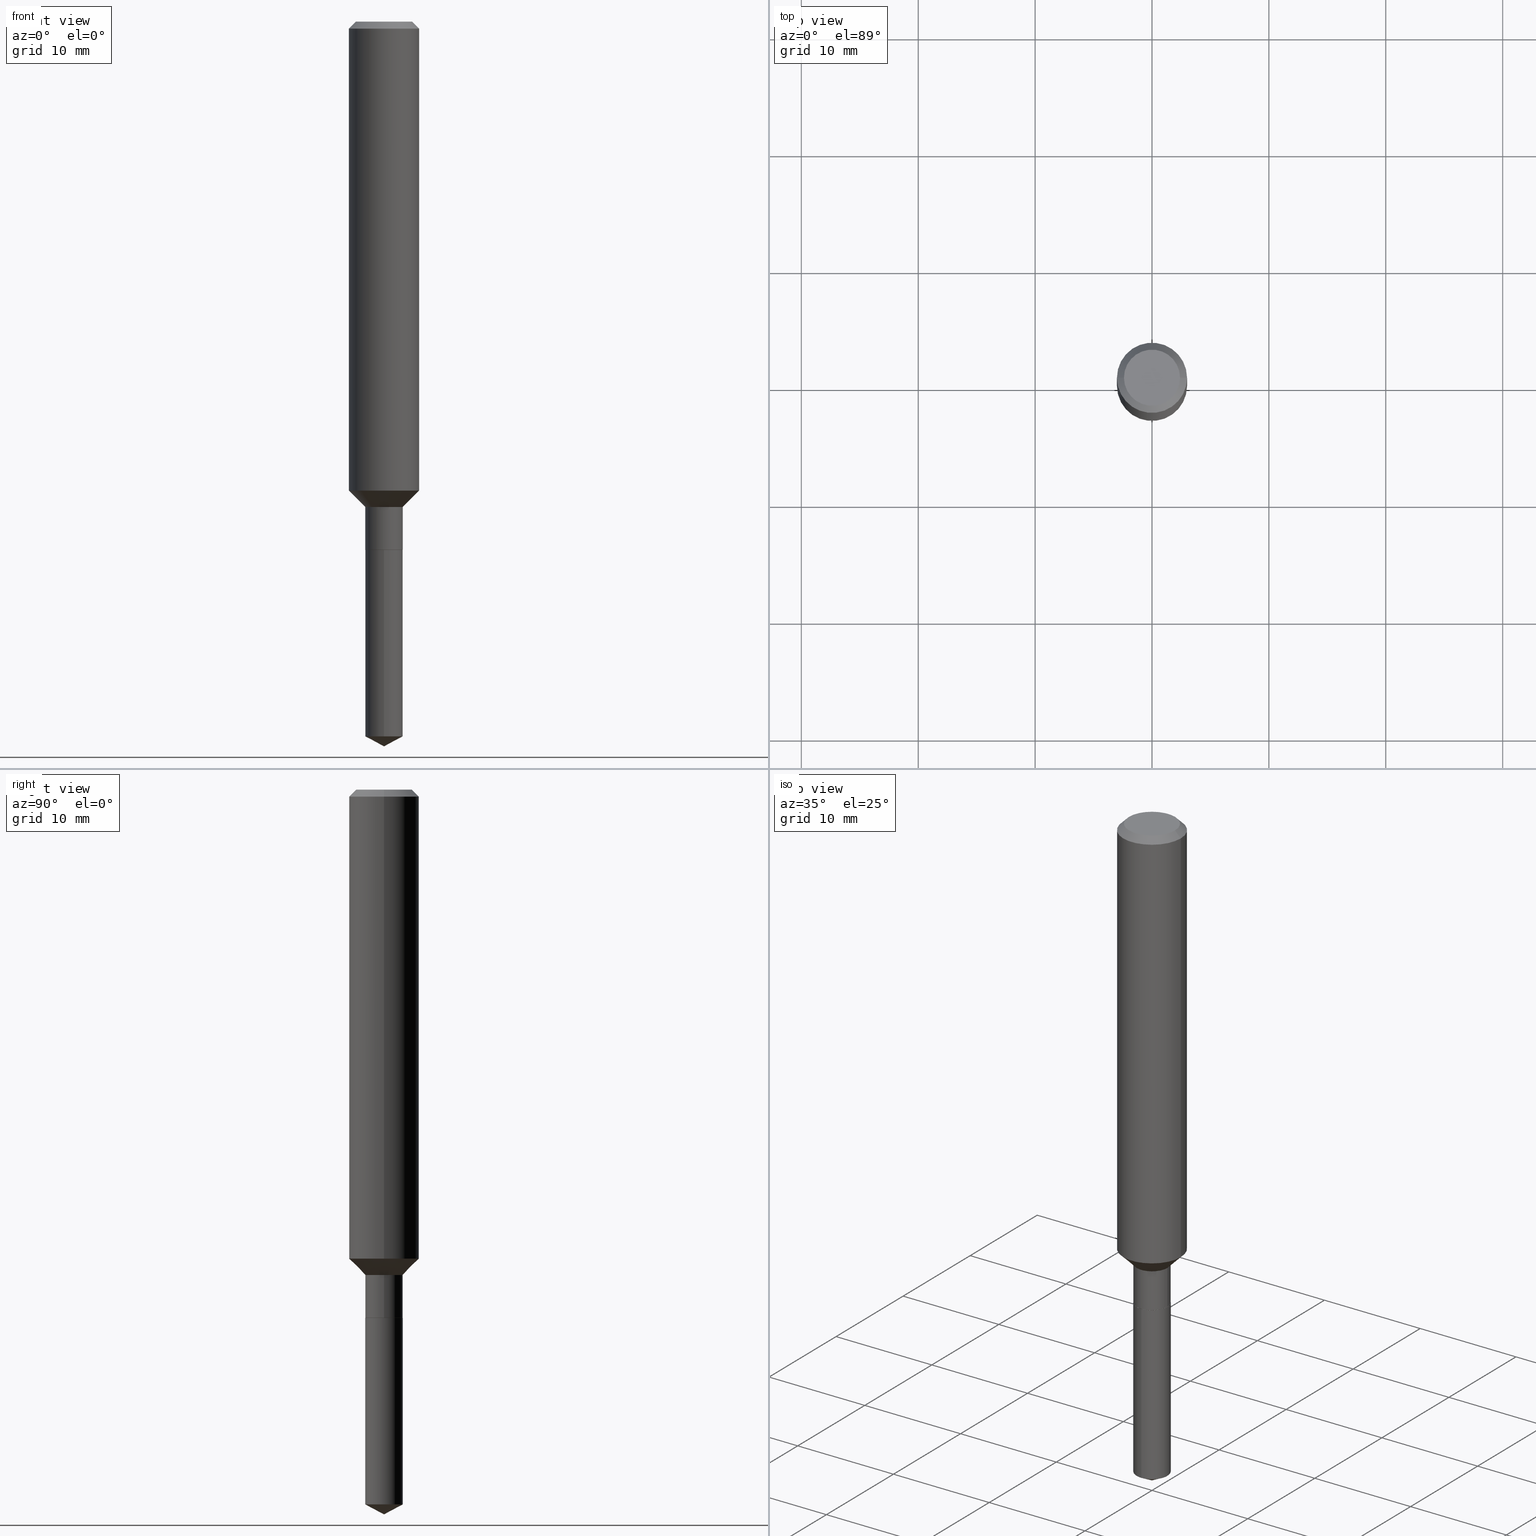
[diagram: canonical four-view strip — front | top / right | iso, engineering-drawing reading convention]
A machine part, canonical four-view strip (front | top / right | iso — engineering-drawing reading convention). The complete STEP part file that produces these views, byte-faithful:
ISO-10303-21;
HEADER;
FILE_DESCRIPTION (( 'STEP AP203' ),
    '1' );
FILE_NAME ('64602.STEP',
    '2024-04-24T18:23:04',
    ( '' ),
    ( '' ),
    'SwSTEP 2.0',
    'SolidWorks 2023',
    '' );
FILE_SCHEMA (( 'CONFIG_CONTROL_DESIGN' ));
ENDSEC;

DATA;
#1 = LINE ( 'NONE', #91, #315 ) ;
#2 = ORIENTED_EDGE ( 'NONE', *, *, #110, .F. ) ;
#3 = EDGE_LOOP ( 'NONE', ( #335, #71, #346, #327 ) ) ;
#4 = DIRECTION ( 'NONE',  ( 1.000000000000000000, -6.982962677686266711E-15, 4.876176775795936353E-29 ) ) ;
#5 = VERTEX_POINT ( 'NONE', #399 ) ;
#6 = CYLINDRICAL_SURFACE ( 'NONE', #25, 0.1181000000000000799 ) ;
#7 = AXIS2_PLACEMENT_3D ( 'NONE', #274, #46, #354 ) ;
#8 = PERSON_AND_ORGANIZATION ( #148, #202 ) ;
#9 = DIRECTION ( 'NONE',  ( -2.445468806185136877E-29, 3.491481338843145188E-15, 1.000000000000000000 ) ) ;
#10 = CARTESIAN_POINT ( 'NONE',  ( 0.09447999999999998066, -7.704367267948738690E-16, -2.700101262759583929E-17 ) ) ;
#11 = EDGE_CURVE ( 'NONE', #268, #54, #172, .T. ) ;
#12 = ORIENTED_EDGE ( 'NONE', *, *, #181, .F. ) ;
#13 = DIRECTION ( 'NONE',  ( 2.438088387897960049E-29, -3.491481338843145188E-15, -1.000000000000000000 ) ) ;
#14 = AXIS2_PLACEMENT_3D ( 'NONE', #341, #267, #427 ) ;
#15 = DIRECTION ( 'NONE',  ( -0.7071067811866199593, 7.493145998870616062E-15, 0.7071067811864750752 ) ) ;
#16 = ORIENTED_EDGE ( 'NONE', *, *, #105, .T. ) ;
#17 = CARTESIAN_POINT ( 'NONE',  ( 5.776197320209327532E-31, -8.246878922347559293E-17, -0.02362000000000014088 ) ) ;
#18 = ORIENTED_EDGE ( 'NONE', *, *, #342, .T. ) ;
#19 = CC_DESIGN_PERSON_AND_ORGANIZATION_ASSIGNMENT ( #254, #160, ( #469 ) ) ;
#20 = CARTESIAN_POINT ( 'NONE',  ( -4.399266486941762515E-16, -0.06300000000000846589, -2.407402305805326215 ) ) ;
#21 = CC_DESIGN_APPROVAL ( #486, ( #469 ) ) ;
#22 = DIRECTION ( 'NONE',  ( -6.982962677686266711E-15, -1.000000000000000000, 4.336266656609940039E-15 ) ) ;
#23 = CIRCLE ( 'NONE', #476, 0.1180999999999999966 ) ;
#24 = DIRECTION ( 'NONE',  ( -2.410210736242674769E-29, 3.541972901765466876E-15, 1.000000000000000000 ) ) ;
#25 = AXIS2_PLACEMENT_3D ( 'NONE', #121, #393, #305 ) ;
#26 = ORIENTED_EDGE ( 'NONE', *, *, #423, .F. ) ;
#27 = PRODUCT ( '64602', '64602', '', ( #416 ) ) ;
#28 = CC_DESIGN_PERSON_AND_ORGANIZATION_ASSIGNMENT ( #127, #459, ( #469 ) ) ;
#29 = CALENDAR_DATE ( 2024, 24, 4 ) ;
#30 = CLOSED_SHELL ( 'NONE', ( #270, #442, #35, #382, #394 ) ) ;
#31 = AXIS2_PLACEMENT_3D ( 'NONE', #62, #359, #317 ) ;
#32 = VERTEX_POINT ( 'NONE', #395 ) ;
#33 = FACE_OUTER_BOUND ( 'NONE', #212, .T. ) ;
#34 = CALENDAR_DATE ( 2024, 24, 4 ) ;
#35 = ADVANCED_FACE ( 'NONE', ( #263 ), #201, .T. ) ;
#36 = COORDINATED_UNIVERSAL_TIME_OFFSET ( 5, 0, .BEHIND. ) ;
#37 = SHAPE_DEFINITION_REPRESENTATION ( #94, #467 ) ;
#38 = DIRECTION ( 'NONE',  ( -0.7071067811865460184, 2.468850131082241283E-15, -0.7071067811865490160 ) ) ;
#39 = VERTEX_POINT ( 'NONE', #153 ) ;
#40 = CONICAL_SURFACE ( 'NONE', #190, 0.06250000000000000000, 0.7853981633975507526 ) ;
#41 = APPROVAL_DATE_TIME ( #196, #208 ) ;
#42 = CARTESIAN_POINT ( 'NONE',  ( -0.1180999999999999966, -1.959480811030432098E-15, -0.02362000000000014088 ) ) ;
#43 = ORIENTED_EDGE ( 'NONE', *, *, #260, .F. ) ;
#44 = SECURITY_CLASSIFICATION_LEVEL ( 'unclassified' ) ;
#45 = CARTESIAN_POINT ( 'NONE',  ( 6.603013411620882309E-46, -9.427353171913646324E-32, -2.700101262760083747E-17 ) ) ;
#46 = DIRECTION ( 'NONE',  ( -2.445468806185136597E-29, 3.491481338843145583E-15, 1.000000000000000000 ) ) ;
#47 = VECTOR ( 'NONE', #169, 39.37007874015748143 ) ;
#48 = VERTEX_POINT ( 'NONE', #264 ) ;
#49 = ADVANCED_FACE ( 'NONE', ( #33 ), #184, .F. ) ;
#50 = CARTESIAN_POINT ( 'NONE',  ( -4.399266486941912892E-16, -0.06300000000000621769, -1.779499999999999416 ) ) ;
#51 = ORIENTED_EDGE ( 'NONE', *, *, #286, .T. ) ;
#52 = DIRECTION ( 'NONE',  ( 1.000000000000000000, -6.982962677686266711E-15, 4.876176775795936353E-29 ) ) ;
#53 = EDGE_CURVE ( 'NONE', #48, #32, #384, .T. ) ;
#54 = VERTEX_POINT ( 'NONE', #122 ) ;
#55 = LINE ( 'NONE', #440, #340 ) ;
#56 = LOCAL_TIME ( 14, 23, 4.000000000000000000, #72 ) ;
#57 = FACE_OUTER_BOUND ( 'NONE', #454, .T. ) ;
#58 = AXIS2_PLACEMENT_3D ( 'NONE', #104, #13, #63 ) ;
#59 = ORIENTED_EDGE ( 'NONE', *, *, #456, .T. ) ;
#60 = LINE ( 'NONE', #102, #302 ) ;
#61 = ORIENTED_EDGE ( 'NONE', *, *, #260, .T. ) ;
#62 = CARTESIAN_POINT ( 'NONE',  ( 4.351711740606449758E-29, -6.213091042471375748E-15, -1.779499999999999638 ) ) ;
#63 = DIRECTION ( 'NONE',  ( -1.000000000000000000, 6.982962677686265922E-15, -4.876176775795935793E-29 ) ) ;
#64 =( GEOMETRIC_REPRESENTATION_CONTEXT ( 3 ) GLOBAL_UNCERTAINTY_ASSIGNED_CONTEXT ( ( #457 ) ) GLOBAL_UNIT_ASSIGNED_CONTEXT ( ( #411, #482, #74 ) ) REPRESENTATION_CONTEXT ( 'NONE', 'WORKASPACE' ) );
#65 = ORIENTED_EDGE ( 'NONE', *, *, #345, .F. ) ;
#66 = AXIS2_PLACEMENT_3D ( 'NONE', #257, #484, #339 ) ;
#67 = DIRECTION ( 'NONE',  ( 0.000000000000000000, 0.000000000000000000, 1.000000000000000000 ) ) ;
#68 = CIRCLE ( 'NONE', #31, 0.06250000000000000000 ) ;
#69 = EDGE_CURVE ( 'NONE', #54, #268, #188, .T. ) ;
#70 = PERSON_AND_ORGANIZATION ( #148, #202 ) ;
#71 = ORIENTED_EDGE ( 'NONE', *, *, #489, .F. ) ;
#72 = COORDINATED_UNIVERSAL_TIME_OFFSET ( 5, 0, .BEHIND. ) ;
#73 = AXIS2_PLACEMENT_3D ( 'NONE', #246, #400, #134 ) ;
#74 =( NAMED_UNIT ( * ) SI_UNIT ( $, .STERADIAN. ) SOLID_ANGLE_UNIT ( ) );
#75 = VECTOR ( 'NONE', #379, 39.37007874015748143 ) ;
#76 = EDGE_LOOP ( 'NONE', ( #81, #409, #209, #361 ) ) ;
#77 = APPROVAL ( #176, 'UNSPECIFIED' ) ;
#78 = APPROVAL_STATUS ( 'not_yet_approved' ) ;
#79 = DIRECTION ( 'NONE',  ( -2.438088387897960049E-29, 3.491481338843145188E-15, 1.000000000000000000 ) ) ;
#80 = CARTESIAN_POINT ( 'NONE',  ( -0.1180999999999999966, 7.422191030112725094E-16, -0.02362000000000014088 ) ) ;
#81 = ORIENTED_EDGE ( 'NONE', *, *, #211, .T. ) ;
#82 = PERSON_AND_ORGANIZATION_ROLE ( 'classification_officer' ) ;
#83 = DIRECTION ( 'NONE',  ( -2.410210736242674769E-29, 3.541972901765466876E-15, 1.000000000000000000 ) ) ;
#84 = AXIS2_PLACEMENT_3D ( 'NONE', #336, #79, #485 ) ;
#85 = DIRECTION ( 'NONE',  ( -2.445468806185136597E-29, 3.491481338843145583E-15, 1.000000000000000000 ) ) ;
#86 = EDGE_CURVE ( 'NONE', #5, #426, #117, .T. ) ;
#87 = DATE_TIME_ROLE ( 'classification_date' ) ;
#88 = FACE_OUTER_BOUND ( 'NONE', #414, .T. ) ;
#89 = EDGE_CURVE ( 'NONE', #206, #426, #109, .T. ) ;
#90 = ORIENTED_EDGE ( 'NONE', *, *, #89, .F. ) ;
#91 = CARTESIAN_POINT ( 'NONE',  ( -0.06299999999999998657, 4.476419235288630216E-16, -3.098929106860590303E-30 ) ) ;
#92 = AXIS2_PLACEMENT_3D ( 'NONE', #203, #83, #355 ) ;
#93 = CARTESIAN_POINT ( 'NONE',  ( 4.350489006203357517E-29, -6.211345301801955822E-15, -1.778999999999999693 ) ) ;
#94 = PRODUCT_DEFINITION_SHAPE ( 'NONE', 'NONE',  #162 ) ;
#95 = FACE_OUTER_BOUND ( 'NONE', #435, .T. ) ;
#96 = DIRECTION ( 'NONE',  ( -2.445468806185136597E-29, 3.491481338843145583E-15, 1.000000000000000000 ) ) ;
#97 = FACE_OUTER_BOUND ( 'NONE', #419, .T. ) ;
#98 = CC_DESIGN_DATE_AND_TIME_ASSIGNMENT ( #453, #332, ( #162 ) ) ;
#99 = APPROVAL_PERSON_ORGANIZATION ( #451, #486, #224 ) ;
#100 = VECTOR ( 'NONE', #15, 39.37007874015748143 ) ;
#101 = CONICAL_SURFACE ( 'NONE', #352, 0.06299999999999998657, 0.7853981633974508325 ) ;
#102 = CARTESIAN_POINT ( 'NONE',  ( 0.1180999999999999966, -8.926936027602933910E-16, -0.02362000000000014088 ) ) ;
#103 = DIRECTION ( 'NONE',  ( 1.000000000000000000, -6.982962677686272233E-15, 0.000000000000000000 ) ) ;
#104 = CARTESIAN_POINT ( 'NONE',  ( 3.301506705810441154E-46, -4.713676585956823162E-32, -1.350050631380041873E-17 ) ) ;
#105 = EDGE_CURVE ( 'NONE', #48, #429, #295, .T. ) ;
#106 = PERSON_AND_ORGANIZATION_ROLE ( 'creator' ) ;
#107 = CYLINDRICAL_SURFACE ( 'NONE', #158, 0.06299999999999998657 ) ;
#108 = ORIENTED_EDGE ( 'NONE', *, *, #53, .T. ) ;
#109 = CIRCLE ( 'NONE', #383, 0.06300000000000002820 ) ;
#110 = EDGE_CURVE ( 'NONE', #262, #452, #23, .T. ) ;
#111 = CIRCLE ( 'NONE', #222, 0.09447999999999998066 ) ;
#112 = DIRECTION ( 'NONE',  ( 0.7071067811866199593, -2.468850131083015945E-15, 0.7071067811864750752 ) ) ;
#113 = ADVANCED_FACE ( 'NONE', ( #216 ), #428, .T. ) ;
#114 = DIRECTION ( 'NONE',  ( -6.982962677686265922E-15, -1.000000000000000000, 4.336266656609941617E-15 ) ) ;
#115 = CARTESIAN_POINT ( 'NONE',  ( 0.000000000000000000, 0.000000000000000000, 0.000000000000000000 ) ) ;
#116 = CIRCLE ( 'NONE', #14, 0.1181000000000001632 ) ;
#117 = LINE ( 'NONE', #151, #75 ) ;
#118 = APPROVAL_ROLE ( '' ) ;
#119 = DESIGN_CONTEXT ( 'detailed design', #178, 'design' ) ;
#120 = CARTESIAN_POINT ( 'NONE',  ( 4.350489006203357517E-29, -6.211345301801955822E-15, -1.778999999999999693 ) ) ;
#121 = CARTESIAN_POINT ( 'NONE',  ( 0.000000000000000000, 0.000000000000000000, 0.000000000000000000 ) ) ;
#122 = CARTESIAN_POINT ( 'NONE',  ( 4.476419235289220876E-16, 0.06299999999999378320, -1.779499999999999860 ) ) ;
#123 = CYLINDRICAL_SURFACE ( 'NONE', #92, 0.06300000000000001432 ) ;
#124 = DIRECTION ( 'NONE',  ( -2.445468806185136597E-29, 3.491481338843145583E-15, 1.000000000000000000 ) ) ;
#125 = ADVANCED_FACE ( 'NONE', ( #57 ), #107, .T. ) ;
#126 = ORIENTED_EDGE ( 'NONE', *, *, #279, .F. ) ;
#127 = PERSON_AND_ORGANIZATION ( #148, #202 ) ;
#128 = CARTESIAN_POINT ( 'NONE',  ( 5.776197320209327532E-31, -8.246878922347559293E-17, -0.02362000000000014088 ) ) ;
#129 = CC_DESIGN_PERSON_AND_ORGANIZATION_ASSIGNMENT ( #422, #106, ( #162 ) ) ;
#130 = DIRECTION ( 'NONE',  ( 2.410210736242674769E-29, -3.541972901765466481E-15, -1.000000000000000000 ) ) ;
#131 = AXIS2_PLACEMENT_3D ( 'NONE', #487, #415, #114 ) ;
#132 = EDGE_LOOP ( 'NONE', ( #404, #179, #282, #2 ) ) ;
#133 = DIRECTION ( 'NONE',  ( 0.7071067811865460184, -7.319954787623251312E-15, -0.7071067811865490160 ) ) ;
#134 = DIRECTION ( 'NONE',  ( 1.000000000000000000, -6.982962677686262766E-15, 0.000000000000000000 ) ) ;
#135 = DIRECTION ( 'NONE',  ( 1.000000000000000000, -6.982962677686262766E-15, 0.000000000000000000 ) ) ;
#136 = VECTOR ( 'NONE', #468, 39.37007874015748143 ) ;
#137 = CARTESIAN_POINT ( 'NONE',  ( 3.997363310590223377E-29, -5.707175396473004292E-15, -1.634599999999999609 ) ) ;
#138 = ORIENTED_EDGE ( 'NONE', *, *, #434, .F. ) ;
#139 = CARTESIAN_POINT ( 'NONE',  ( 3.997363310590223377E-29, -5.707175396473004292E-15, -1.634599999999999609 ) ) ;
#140 = APPROVAL_DATE_TIME ( #480, #486 ) ;
#141 = ORIENTED_EDGE ( 'NONE', *, *, #407, .F. ) ;
#142 = DIRECTION ( 'NONE',  ( 1.000000000000000000, -6.982962677686267499E-15, 4.875432709231658792E-29 ) ) ;
#143 = PERSON_AND_ORGANIZATION_ROLE ( 'design_owner' ) ;
#144 = CARTESIAN_POINT ( 'NONE',  ( -0.09447999999999998066, 7.009847083995354710E-16, -2.700101262760559836E-17 ) ) ;
#145 = LINE ( 'NONE', #217, #276 ) ;
#146 = DATE_AND_TIME ( #432, #348 ) ;
#147 = VECTOR ( 'NONE', #344, 39.37007874015748143 ) ;
#148 = PERSON ( 'UNSPECIFIED', 'UNSPECIFIED', 'UNSPECIFIED', ('UNSPECIFIED'), ('UNSPECIFIED'), ('UNSPECIFIED') ) ;
#149 = AXIS2_PLACEMENT_3D ( 'NONE', #157, #232, #347 ) ;
#150 = ORIENTED_EDGE ( 'NONE', *, *, #211, .F. ) ;
#151 = CARTESIAN_POINT ( 'NONE',  ( 5.883083386094743219E-29, -8.645601655919327856E-15, -2.440899999999999626 ) ) ;
#152 = DIRECTION ( 'NONE',  ( -2.445468806185136877E-29, 3.491481338843145188E-15, 1.000000000000000000 ) ) ;
#153 = CARTESIAN_POINT ( 'NONE',  ( 0.06300000000000000044, -6.651271950496190499E-15, -1.778999999999999693 ) ) ;
#154 = DIMENSIONAL_EXPONENTS ( 1.000000000000000000, 0.000000000000000000, 0.000000000000000000, 0.000000000000000000, 0.000000000000000000, 0.000000000000000000, 0.000000000000000000 ) ;
#155 = LINE ( 'NONE', #436, #471 ) ;
#156 = CARTESIAN_POINT ( 'NONE',  ( 0.000000000000000000, 0.000000000000000000, 0.000000000000000000 ) ) ;
#157 = CARTESIAN_POINT ( 'NONE',  ( 3.997363310590223377E-29, -5.707175396473004292E-15, -1.634599999999999609 ) ) ;
#158 = AXIS2_PLACEMENT_3D ( 'NONE', #204, #124, #4 ) ;
#159 = ORIENTED_EDGE ( 'NONE', *, *, #371, .T. ) ;
#160 = PERSON_AND_ORGANIZATION_ROLE ( 'creator' ) ;
#161 = DIRECTION ( 'NONE',  ( -2.445468806185136597E-29, 3.491481338843145583E-15, 1.000000000000000000 ) ) ;
#162 = PRODUCT_DEFINITION ( 'UNKNOWN', '', #469, #119 ) ;
#163 = VERTEX_POINT ( 'NONE', #200 ) ;
#164 = DIRECTION ( 'NONE',  ( 6.273719981627766865E-15, 0.8829475928589297640, 0.4694715627858855878 ) ) ;
#165 = CARTESIAN_POINT ( 'NONE',  ( -0.06250000000000000000, -5.769001832621313921E-15, -1.779499999999999638 ) ) ;
#166 = CONICAL_SURFACE ( 'NONE', #360, 0.06250000000000000000, 0.7853981633975507526 ) ;
#167 = ORIENTED_EDGE ( 'NONE', *, *, #410, .T. ) ;
#168 = DIRECTION ( 'NONE',  ( -2.445468806185136597E-29, 3.491481338843145583E-15, 1.000000000000000000 ) ) ;
#169 = DIRECTION ( 'NONE',  ( -2.445468806185136877E-29, 3.491481338843145188E-15, 1.000000000000000000 ) ) ;
#170 = CARTESIAN_POINT ( 'NONE',  ( -0.06299999999999998657, -5.511618425608616937E-15, -1.634599999999999609 ) ) ;
#171 = EDGE_CURVE ( 'NONE', #426, #268, #197, .T. ) ;
#172 = CIRCLE ( 'NONE', #323, 0.06300000000000000044 ) ;
#173 = CIRCLE ( 'NONE', #306, 0.06300000000000000044 ) ;
#174 = CARTESIAN_POINT ( 'NONE',  ( 4.351711740606449758E-29, -6.213091042471375748E-15, -1.779499999999999638 ) ) ;
#175 = DIRECTION ( 'NONE',  ( 1.000000000000000000, -6.982962677686266711E-15, 4.876176775795936353E-29 ) ) ;
#176 = APPROVAL_STATUS ( 'not_yet_approved' ) ;
#177 = EDGE_LOOP ( 'NONE', ( #219, #195, #90 ) ) ;
#178 = APPLICATION_CONTEXT ( 'configuration controlled 3d designs of mechanical parts and assemblies' ) ;
#179 = ORIENTED_EDGE ( 'NONE', *, *, #294, .T. ) ;
#180 = CC_DESIGN_APPROVAL ( #77, ( #162 ) ) ;
#181 = EDGE_CURVE ( 'NONE', #429, #48, #183, .T. ) ;
#182 = CARTESIAN_POINT ( 'NONE',  ( -8.894436134468968267E-28, 1.308920001183114441E-13, 36.92917874015748225 ) ) ;
#183 = CIRCLE ( 'NONE', #149, 0.06299999999999998657 ) ;
#184 = PLANE ( 'NONE',  #84 ) ;
#185 =( LENGTH_UNIT ( ) NAMED_UNIT ( * ) SI_UNIT ( $, .METRE. ) );
#186 = DIRECTION ( 'NONE',  ( -2.410210736242674769E-29, 3.541972901765466876E-15, 1.000000000000000000 ) ) ;
#187 = ORIENTED_EDGE ( 'NONE', *, *, #392, .T. ) ;
#188 = CIRCLE ( 'NONE', #131, 0.06300000000000000044 ) ;
#189 = FACE_OUTER_BOUND ( 'NONE', #132, .T. ) ;
#190 = AXIS2_PLACEMENT_3D ( 'NONE', #269, #85, #207 ) ;
#191 = CC_DESIGN_PERSON_AND_ORGANIZATION_ASSIGNMENT ( #377, #143, ( #27 ) ) ;
#192 = ORIENTED_EDGE ( 'NONE', *, *, #53, .F. ) ;
#193 = COORDINATED_UNIVERSAL_TIME_OFFSET ( 5, 0, .BEHIND. ) ;
#194 = FACE_OUTER_BOUND ( 'NONE', #358, .T. ) ;
#195 = ORIENTED_EDGE ( 'NONE', *, *, #86, .T. ) ;
#196 = DATE_AND_TIME ( #430, #248 ) ;
#197 = LINE ( 'NONE', #466, #147 ) ;
#198 = EDGE_LOOP ( 'NONE', ( #266, #61 ) ) ;
#199 = CC_DESIGN_SECURITY_CLASSIFICATION ( #374, ( #469 ) ) ;
#200 = CARTESIAN_POINT ( 'NONE',  ( -0.06250000000000000000, -5.766352605447202720E-15, -1.779499999999999638 ) ) ;
#201 = CONICAL_SURFACE ( 'NONE', #66, 74.04434902938358221, 1.082104136236486713 ) ;
#202 = ORGANIZATION ( 'UNSPECIFIED', 'UNSPECIFIED', '' ) ;
#203 = CARTESIAN_POINT ( 'NONE',  ( 4.351711740606449758E-29, -6.213091042471375748E-15, -1.779499999999999638 ) ) ;
#204 = CARTESIAN_POINT ( 'NONE',  ( 0.000000000000000000, 0.000000000000000000, 0.000000000000000000 ) ) ;
#205 = DIRECTION ( 'NONE',  ( 2.445468806185136597E-29, -3.491481338843145583E-15, -1.000000000000000000 ) ) ;
#206 = VERTEX_POINT ( 'NONE', #431 ) ;
#207 = DIRECTION ( 'NONE',  ( 1.000000000000000000, -6.982962677686262766E-15, 0.000000000000000000 ) ) ;
#208 = APPROVAL ( #234, 'UNSPECIFIED' ) ;
#209 = ORIENTED_EDGE ( 'NONE', *, *, #11, .F. ) ;
#210 = DIRECTION ( 'NONE',  ( 1.000000000000000000, -6.982962677686272233E-15, 0.000000000000000000 ) ) ;
#211 = EDGE_CURVE ( 'NONE', #426, #206, #385, .T. ) ;
#212 = EDGE_LOOP ( 'NONE', ( #138, #372 ) ) ;
#213 = DIRECTION ( 'NONE',  ( -2.445468806185136597E-29, 3.491481338843145583E-15, 1.000000000000000000 ) ) ;
#214 = EDGE_CURVE ( 'NONE', #462, #429, #1, .T. ) ;
#215 = CARTESIAN_POINT ( 'NONE',  ( 0.06250000000000000000, -6.649526209826767418E-15, -1.779499999999999638 ) ) ;
#216 = FACE_OUTER_BOUND ( 'NONE', #439, .T. ) ;
#217 = CARTESIAN_POINT ( 'NONE',  ( 0.06250000000000000000, -6.649526209826767418E-15, -1.779499999999999638 ) ) ;
#218 = EDGE_CURVE ( 'NONE', #39, #48, #381, .T. ) ;
#219 = ORIENTED_EDGE ( 'NONE', *, *, #275, .F. ) ;
#220 = APPLICATION_PROTOCOL_DEFINITION ( 'international standard', 'config_control_design', 1994, #178 ) ;
#221 = CARTESIAN_POINT ( 'NONE',  ( 5.865088619369979640E-29, -8.437103994589897883E-15, -2.407402305805326659 ) ) ;
#222 = AXIS2_PLACEMENT_3D ( 'NONE', #45, #161, #299 ) ;
#223 = ORIENTED_EDGE ( 'NONE', *, *, #218, .F. ) ;
#224 = APPROVAL_ROLE ( '' ) ;
#225 = ADVANCED_FACE ( 'NONE', ( #189 ), #6, .T. ) ;
#226 = ORIENTED_EDGE ( 'NONE', *, *, #407, .T. ) ;
#227 = ORIENTED_EDGE ( 'NONE', *, *, #366, .F. ) ;
#228 = CC_DESIGN_DATE_AND_TIME_ASSIGNMENT ( #146, #87, ( #374 ) ) ;
#229 = CARTESIAN_POINT ( 'NONE',  ( 6.009667198938628558E-29, -8.465902183478785252E-15, -2.440899999999999626 ) ) ;
#230 = ORIENTED_EDGE ( 'NONE', *, *, #258, .F. ) ;
#231 = CARTESIAN_POINT ( 'NONE',  ( 0.06299999999999998657, -6.147102045167238969E-15, -1.634599999999999609 ) ) ;
#232 = DIRECTION ( 'NONE',  ( -2.445468806185136597E-29, 3.491481338843145583E-15, 1.000000000000000000 ) ) ;
#233 = EDGE_LOOP ( 'NONE', ( #481, #273, #126, #330 ) ) ;
#234 = APPROVAL_STATUS ( 'not_yet_approved' ) ;
#235 = DIRECTION ( 'NONE',  ( -2.410210736242674769E-29, 3.541972901765466876E-15, 1.000000000000000000 ) ) ;
#236 = DIRECTION ( 'NONE',  ( -2.445468806185136597E-29, 3.491481338843145583E-15, 1.000000000000000000 ) ) ;
#237 = ORIENTED_EDGE ( 'NONE', *, *, #294, .F. ) ;
#238 = DIRECTION ( 'NONE',  ( -2.410210736242674769E-29, 3.541972901765466876E-15, 1.000000000000000000 ) ) ;
#239 = DIRECTION ( 'NONE',  ( -6.982962677686266711E-15, -1.000000000000000000, 4.336266656609940039E-15 ) ) ;
#240 = ORIENTED_EDGE ( 'NONE', *, *, #181, .T. ) ;
#241 = DIRECTION ( 'NONE',  ( 2.445468806185136597E-29, -3.491481338843145583E-15, -1.000000000000000000 ) ) ;
#242 = CLOSED_SHELL ( 'NONE', ( #326, #244, #113, #309, #388, #125, #251, #225, #403, #312, #49, #303 ) ) ;
#243 = CIRCLE ( 'NONE', #463, 0.06300000000000000044 ) ;
#244 = ADVANCED_FACE ( 'NONE', ( #464 ), #287, .T. ) ;
#245 = CYLINDRICAL_SURFACE ( 'NONE', #331, 0.06300000000000001432 ) ;
#246 = CARTESIAN_POINT ( 'NONE',  ( 4.351711740606449758E-29, -6.213091042471375748E-15, -1.779499999999999638 ) ) ;
#247 = DIRECTION ( 'NONE',  ( -2.445468806185136597E-29, 3.491481338843145583E-15, 1.000000000000000000 ) ) ;
#248 = LOCAL_TIME ( 14, 23, 4.000000000000000000, #193 ) ;
#249 = AXIS2_PLACEMENT_3D ( 'NONE', #128, #241, #433 ) ;
#250 = CYLINDRICAL_SURFACE ( 'NONE', #278, 0.06299999999999998657 ) ;
#251 = ADVANCED_FACE ( 'NONE', ( #88 ), #437, .T. ) ;
#252 = CARTESIAN_POINT ( 'NONE',  ( 4.351711740606449758E-29, -6.213091042471375748E-15, -1.779499999999999638 ) ) ;
#253 = DIRECTION ( 'NONE',  ( 1.000000000000000000, -6.982962677686266711E-15, 0.000000000000000000 ) ) ;
#254 = PERSON_AND_ORGANIZATION ( #148, #202 ) ;
#255 = VECTOR ( 'NONE', #164, 39.37007874015748143 ) ;
#256 = ORIENTED_EDGE ( 'NONE', *, *, #214, .T. ) ;
#257 = CARTESIAN_POINT ( 'NONE',  ( -8.894436134468968267E-28, 1.308920001183114441E-13, 36.92917874015748225 ) ) ;
#258 = EDGE_CURVE ( 'NONE', #32, #452, #155, .T. ) ;
#259 = CARTESIAN_POINT ( 'NONE',  ( 6.603013411620882309E-46, -9.427353171913646324E-32, -2.700101262760083747E-17 ) ) ;
#260 = EDGE_CURVE ( 'NONE', #271, #465, #111, .T. ) ;
#261 = AXIS2_PLACEMENT_3D ( 'NONE', #458, #424, #386 ) ;
#262 = VERTEX_POINT ( 'NONE', #42 ) ;
#263 = FACE_OUTER_BOUND ( 'NONE', #177, .T. ) ;
#264 = CARTESIAN_POINT ( 'NONE',  ( 0.06299999999999998657, -6.147102045167238969E-15, -1.634599999999999609 ) ) ;
#265 = DIRECTION ( 'NONE',  ( -2.445468806185136597E-29, 3.491481338843145583E-15, 1.000000000000000000 ) ) ;
#266 = ORIENTED_EDGE ( 'NONE', *, *, #489, .T. ) ;
#267 = DIRECTION ( 'NONE',  ( -2.445468806185136597E-29, 3.491481338843145583E-15, 1.000000000000000000 ) ) ;
#268 = VERTEX_POINT ( 'NONE', #50 ) ;
#269 = CARTESIAN_POINT ( 'NONE',  ( 4.351711740606449758E-29, -6.213091042471375748E-15, -1.779499999999999638 ) ) ;
#270 = ADVANCED_FACE ( 'NONE', ( #308 ), #123, .T. ) ;
#271 = VERTEX_POINT ( 'NONE', #10 ) ;
#272 = CARTESIAN_POINT ( 'NONE',  ( 5.865088619369979640E-29, -8.437103994589897883E-15, -2.407402305805326659 ) ) ;
#273 = ORIENTED_EDGE ( 'NONE', *, *, #345, .T. ) ;
#274 = CARTESIAN_POINT ( 'NONE',  ( 3.997363310590223377E-29, -5.707175396473004292E-15, -1.634599999999999609 ) ) ;
#275 = EDGE_CURVE ( 'NONE', #5, #206, #311, .T. ) ;
#276 = VECTOR ( 'NONE', #112, 39.37007874015748143 ) ;
#277 = FACE_OUTER_BOUND ( 'NONE', #3, .T. ) ;
#278 = AXIS2_PLACEMENT_3D ( 'NONE', #405, #397, #52 ) ;
#279 = EDGE_CURVE ( 'NONE', #39, #462, #173, .T. ) ;
#280 = CARTESIAN_POINT ( 'NONE',  ( -0.1181000000000000799, 8.391509709326788873E-16, -5.809262341591047988E-30 ) ) ;
#281 = LINE ( 'NONE', #165, #100 ) ;
#282 = ORIENTED_EDGE ( 'NONE', *, *, #258, .T. ) ;
#283 = DIRECTION ( 'NONE',  ( -6.982962677686266711E-15, -1.000000000000000000, 4.336266656609940828E-15 ) ) ;
#284 = AXIS2_PLACEMENT_3D ( 'NONE', #115, #67, #488 ) ;
#285 = VECTOR ( 'NONE', #343, 39.37007874015748143 ) ;
#286 = EDGE_CURVE ( 'NONE', #32, #316, #455, .T. ) ;
#287 = CONICAL_SURFACE ( 'NONE', #249, 0.1180999999999999966, 0.7853981633974461696 ) ;
#288 = DIRECTION ( 'NONE',  ( -2.445468806185136597E-29, 3.491481338843145583E-15, 1.000000000000000000 ) ) ;
#289 = DIRECTION ( 'NONE',  ( -6.982962677686265922E-15, -1.000000000000000000, 3.541896320645558897E-15 ) ) ;
#290 = EDGE_CURVE ( 'NONE', #465, #262, #460, .T. ) ;
#291 = ORIENTED_EDGE ( 'NONE', *, *, #86, .F. ) ;
#292 = DIRECTION ( 'NONE',  ( -2.410210736242674769E-29, 3.541972901765466876E-15, 1.000000000000000000 ) ) ;
#293 = COORDINATED_UNIVERSAL_TIME_OFFSET ( 5, 0, .BEHIND. ) ;
#294 = EDGE_CURVE ( 'NONE', #316, #32, #116, .T. ) ;
#295 = CIRCLE ( 'NONE', #350, 0.06299999999999998657 ) ;
#296 = AXIS2_PLACEMENT_3D ( 'NONE', #174, #130, #362 ) ;
#297 = ORIENTED_EDGE ( 'NONE', *, *, #214, .F. ) ;
#298 = DIRECTION ( 'NONE',  ( 1.000000000000000000, -6.982962677686270655E-15, 0.000000000000000000 ) ) ;
#299 = DIRECTION ( 'NONE',  ( 1.000000000000000000, -6.982962677686267499E-15, 4.875432709231658792E-29 ) ) ;
#300 = ORIENTED_EDGE ( 'NONE', *, *, #279, .T. ) ;
#301 = EDGE_LOOP ( 'NONE', ( #300, #256, #375, #223 ) ) ;
#302 = VECTOR ( 'NONE', #133, 39.37007874015748143 ) ;
#303 = ADVANCED_FACE ( 'NONE', ( #194 ), #40, .T. ) ;
#304 = CARTESIAN_POINT ( 'NONE',  ( 4.351711740606449758E-29, -6.213091042471375748E-15, -1.779499999999999638 ) ) ;
#305 = DIRECTION ( 'NONE',  ( 1.000000000000000000, -6.982962677686266711E-15, 4.876176775795936353E-29 ) ) ;
#306 = AXIS2_PLACEMENT_3D ( 'NONE', #120, #265, #298 ) ;
#307 = EDGE_LOOP ( 'NONE', ( #291, #310, #150 ) ) ;
#308 = FACE_OUTER_BOUND ( 'NONE', #76, .T. ) ;
#309 = ADVANCED_FACE ( 'NONE', ( #474 ), #101, .T. ) ;
#310 = ORIENTED_EDGE ( 'NONE', *, *, #275, .T. ) ;
#311 = LINE ( 'NONE', #229, #255 ) ;
#312 = ADVANCED_FACE ( 'NONE', ( #357 ), #447, .F. ) ;
#313 = ORIENTED_EDGE ( 'NONE', *, *, #69, .F. ) ;
#314 = CARTESIAN_POINT ( 'NONE',  ( 4.351711740606449758E-29, -6.213091042471375748E-15, -1.779499999999999638 ) ) ;
#315 = VECTOR ( 'NONE', #9, 39.37007874015748143 ) ;
#316 = VERTEX_POINT ( 'NONE', #321 ) ;
#317 = DIRECTION ( 'NONE',  ( 1.000000000000000000, -6.982962677686262766E-15, 0.000000000000000000 ) ) ;
#318 = EDGE_LOOP ( 'NONE', ( #43, #18, #226, #337 ) ) ;
#319 = PRODUCT_RELATED_PRODUCT_CATEGORY ( 'detail', '', ( #27 ) ) ;
#320 = DIRECTION ( 'NONE',  ( -0.7071067811865493491, 7.493145998870360471E-15, 0.7071067811865457964 ) ) ;
#321 = CARTESIAN_POINT ( 'NONE',  ( -0.1181000000000001632, -4.675643803770066936E-15, -1.579499999999999682 ) ) ;
#322 = APPROVAL_PERSON_ORGANIZATION ( #351, #208, #118 ) ;
#323 = AXIS2_PLACEMENT_3D ( 'NONE', #304, #238, #353 ) ;
#324 = MANIFOLD_SOLID_BREP ( 'Body-Move/Copy2[2]', #242 ) ;
#325 = CALENDAR_DATE ( 2024, 24, 4 ) ;
#326 = ADVANCED_FACE ( 'NONE', ( #444 ), #166, .T. ) ;
#327 = ORIENTED_EDGE ( 'NONE', *, *, #110, .T. ) ;
#328 = DATE_AND_TIME ( #34, #479 ) ;
#329 = MANIFOLD_SOLID_BREP ( 'Body-Move/Copy2[1]', #30 ) ;
#330 = ORIENTED_EDGE ( 'NONE', *, *, #456, .F. ) ;
#331 = AXIS2_PLACEMENT_3D ( 'NONE', #314, #24, #283 ) ;
#332 = DATE_TIME_ROLE ( 'creation_date' ) ;
#333 = ORIENTED_EDGE ( 'NONE', *, *, #371, .F. ) ;
#334 = CARTESIAN_POINT ( 'NONE',  ( 0.1180999999999999966, -9.071566814582237199E-16, -0.02362000000000014088 ) ) ;
#335 = ORIENTED_EDGE ( 'NONE', *, *, #342, .F. ) ;
#336 = CARTESIAN_POINT ( 'NONE',  ( 4.351711740606449758E-29, -6.213091042471375748E-15, -1.779499999999999638 ) ) ;
#337 = ORIENTED_EDGE ( 'NONE', *, *, #290, .F. ) ;
#338 = LOCAL_TIME ( 14, 23, 4.000000000000000000, #36 ) ;
#339 = DIRECTION ( 'NONE',  ( -6.982962677686265922E-15, -1.000000000000000000, 3.541896320645558897E-15 ) ) ;
#340 = VECTOR ( 'NONE', #320, 39.37007874015748143 ) ;
#341 = CARTESIAN_POINT ( 'NONE',  ( 3.862617979369422214E-29, -5.514794774702747499E-15, -1.579499999999999682 ) ) ;
#342 = EDGE_CURVE ( 'NONE', #271, #452, #60, .T. ) ;
#343 = DIRECTION ( 'NONE',  ( 0.7071067811865493491, -2.468850131082275993E-15, 0.7071067811865457964 ) ) ;
#344 = DIRECTION ( 'NONE',  ( -2.410210736242675049E-29, 3.541972901765466481E-15, 1.000000000000000000 ) ) ;
#345 = EDGE_CURVE ( 'NONE', #163, #462, #281, .T. ) ;
#346 = ORIENTED_EDGE ( 'NONE', *, *, #290, .T. ) ;
#347 = DIRECTION ( 'NONE',  ( 1.000000000000000000, -6.982962677686272233E-15, 0.000000000000000000 ) ) ;
#348 = LOCAL_TIME ( 14, 23, 4.000000000000000000, #425 ) ;
#349 = ORIENTED_EDGE ( 'NONE', *, *, #69, .T. ) ;
#350 = AXIS2_PLACEMENT_3D ( 'NONE', #137, #236, #103 ) ;
#351 = PERSON_AND_ORGANIZATION ( #148, #202 ) ;
#352 = AXIS2_PLACEMENT_3D ( 'NONE', #139, #288, #210 ) ;
#353 = DIRECTION ( 'NONE',  ( -6.982962677686265922E-15, -1.000000000000000000, 4.336266656609941617E-15 ) ) ;
#354 = DIRECTION ( 'NONE',  ( 1.000000000000000000, -6.982962677686272233E-15, 0.000000000000000000 ) ) ;
#355 = DIRECTION ( 'NONE',  ( -6.982962677686266711E-15, -1.000000000000000000, 4.336266656609940828E-15 ) ) ;
#356 = APPLICATION_CONTEXT ( 'configuration controlled 3d designs of mechanical parts and assemblies' ) ;
#357 = FACE_OUTER_BOUND ( 'NONE', #198, .T. ) ;
#358 = EDGE_LOOP ( 'NONE', ( #65, #187, #59, #333 ) ) ;
#359 = DIRECTION ( 'NONE',  ( -2.445468806185136597E-29, 3.491481338843145583E-15, 1.000000000000000000 ) ) ;
#360 = AXIS2_PLACEMENT_3D ( 'NONE', #252, #247, #135 ) ;
#361 = ORIENTED_EDGE ( 'NONE', *, *, #171, .F. ) ;
#362 = DIRECTION ( 'NONE',  ( 6.982962677686265922E-15, 1.000000000000000000, -3.541972901765466481E-15 ) ) ;
#363 = ORIENTED_EDGE ( 'NONE', *, *, #171, .T. ) ;
#364 = CARTESIAN_POINT ( 'NONE',  ( 5.776197320209327532E-31, -8.246878922347559293E-17, -0.02362000000000014088 ) ) ;
#365 = PLANE ( 'NONE',  #296 ) ;
#366 = EDGE_CURVE ( 'NONE', #206, #54, #438, .T. ) ;
#367 = AXIS2_PLACEMENT_3D ( 'NONE', #156, #443, #175 ) ;
#368 = AXIS2_PLACEMENT_3D ( 'NONE', #17, #213, #473 ) ;
#369 = APPLICATION_PROTOCOL_DEFINITION ( 'international standard', 'config_control_design', 1994, #356 ) ;
#370 = FACE_OUTER_BOUND ( 'NONE', #307, .T. ) ;
#371 = EDGE_CURVE ( 'NONE', #462, #39, #243, .T. ) ;
#372 = ORIENTED_EDGE ( 'NONE', *, *, #392, .F. ) ;
#373 = APPROVAL_ROLE ( '' ) ;
#374 = SECURITY_CLASSIFICATION ( '', '', #44 ) ;
#375 = ORIENTED_EDGE ( 'NONE', *, *, #105, .F. ) ;
#376 = CIRCLE ( 'NONE', #368, 0.1180999999999999966 ) ;
#377 = PERSON_AND_ORGANIZATION ( #148, #202 ) ;
#378 = ORIENTED_EDGE ( 'NONE', *, *, #286, .F. ) ;
#379 = DIRECTION ( 'NONE',  ( -6.165590087286835240E-15, -0.8829475928589264333, 0.4694715627858918050 ) ) ;
#380 = DIRECTION ( 'NONE',  ( -2.445468806185136597E-29, 3.491481338843145583E-15, 1.000000000000000000 ) ) ;
#381 = LINE ( 'NONE', #390, #449 ) ;
#382 = ADVANCED_FACE ( 'NONE', ( #97 ), #245, .T. ) ;
#383 = AXIS2_PLACEMENT_3D ( 'NONE', #221, #186, #22 ) ;
#384 = LINE ( 'NONE', #231, #285 ) ;
#385 = CIRCLE ( 'NONE', #483, 0.06300000000000002820 ) ;
#386 = DIRECTION ( 'NONE',  ( 1.000000000000000000, -6.982962677686263555E-15, 0.000000000000000000 ) ) ;
#387 = VERTEX_POINT ( 'NONE', #215 ) ;
#388 = ADVANCED_FACE ( 'NONE', ( #472 ), #250, .T. ) ;
#389 = ORIENTED_EDGE ( 'NONE', *, *, #218, .T. ) ;
#390 = CARTESIAN_POINT ( 'NONE',  ( 0.06299999999999998657, -4.399266486942347259E-16, 3.071991368751439423E-30 ) ) ;
#391 = ORIENTED_EDGE ( 'NONE', *, *, #423, .T. ) ;
#392 = EDGE_CURVE ( 'NONE', #163, #387, #68, .T. ) ;
#393 = DIRECTION ( 'NONE',  ( -2.445468806185136597E-29, 3.491481338843145583E-15, 1.000000000000000000 ) ) ;
#394 = ADVANCED_FACE ( 'NONE', ( #95 ), #365, .F. ) ;
#395 = CARTESIAN_POINT ( 'NONE',  ( 0.1181000000000001632, -6.339482666937496551E-15, -1.579499999999999682 ) ) ;
#396 = DIRECTION ( 'NONE',  ( -2.445468806185136877E-29, 3.491481338843145188E-15, 1.000000000000000000 ) ) ;
#397 = DIRECTION ( 'NONE',  ( -2.445468806185136597E-29, 3.491481338843145583E-15, 1.000000000000000000 ) ) ;
#398 = EDGE_LOOP ( 'NONE', ( #16, #391, #378, #192 ) ) ;
#399 = CARTESIAN_POINT ( 'NONE',  ( 5.883083386094743219E-29, -8.645601655919327856E-15, -2.440899999999999626 ) ) ;
#400 = DIRECTION ( 'NONE',  ( -2.445468806185136597E-29, 3.491481338843145583E-15, 1.000000000000000000 ) ) ;
#401 = AXIS2_PLACEMENT_3D ( 'NONE', #182, #292, #289 ) ;
#402 = DIRECTION ( 'NONE',  ( -1.000000000000000000, 6.982962677686266711E-15, 0.000000000000000000 ) ) ;
#403 = ADVANCED_FACE ( 'NONE', ( #277 ), #420, .T. ) ;
#404 = ORIENTED_EDGE ( 'NONE', *, *, #410, .F. ) ;
#405 = CARTESIAN_POINT ( 'NONE',  ( 0.000000000000000000, 0.000000000000000000, 0.000000000000000000 ) ) ;
#406 = CARTESIAN_POINT ( 'NONE',  ( 5.776197320209327532E-31, -8.246878922347559293E-17, -0.02362000000000014088 ) ) ;
#407 = EDGE_CURVE ( 'NONE', #452, #262, #376, .T. ) ;
#408 = DIRECTION ( 'NONE',  ( 1.000000000000000000, -6.982962677686270655E-15, 0.000000000000000000 ) ) ;
#409 = ORIENTED_EDGE ( 'NONE', *, *, #366, .T. ) ;
#410 = EDGE_CURVE ( 'NONE', #316, #262, #477, .T. ) ;
#411 =( CONVERSION_BASED_UNIT ( 'INCH', #418 ) LENGTH_UNIT ( ) NAMED_UNIT ( #154 ) );
#412 = APPROVAL_PERSON_ORGANIZATION ( #70, #77, #373 ) ;
#413 = CIRCLE ( 'NONE', #73, 0.06250000000000000000 ) ;
#414 = EDGE_LOOP ( 'NONE', ( #26, #240, #108, #237 ) ) ;
#415 = DIRECTION ( 'NONE',  ( -2.410210736242674769E-29, 3.541972901765466876E-15, 1.000000000000000000 ) ) ;
#416 = MECHANICAL_CONTEXT ( 'NONE', #356, 'mechanical' ) ;
#417 = ORIENTED_EDGE ( 'NONE', *, *, #89, .T. ) ;
#418 = LENGTH_MEASURE_WITH_UNIT ( LENGTH_MEASURE( 0.02539999999999999897 ), #185 );
#419 = EDGE_LOOP ( 'NONE', ( #227, #417, #363, #313 ) ) ;
#420 = CONICAL_SURFACE ( 'NONE', #478, 0.1180999999999999966, 0.7853981633974461696 ) ;
#421 = AXIS2_PLACEMENT_3D ( 'NONE', #259, #380, #142 ) ;
#422 = PERSON_AND_ORGANIZATION ( #148, #202 ) ;
#423 = EDGE_CURVE ( 'NONE', #429, #316, #55, .T. ) ;
#424 = DIRECTION ( 'NONE',  ( -2.445468806185136597E-29, 3.491481338843145583E-15, 1.000000000000000000 ) ) ;
#425 = COORDINATED_UNIVERSAL_TIME_OFFSET ( 5, 0, .BEHIND. ) ;
#426 = VERTEX_POINT ( 'NONE', #20 ) ;
#427 = DIRECTION ( 'NONE',  ( 1.000000000000000000, -6.982962677686263555E-15, 0.000000000000000000 ) ) ;
#428 = CYLINDRICAL_SURFACE ( 'NONE', #367, 0.1181000000000000799 ) ;
#429 = VERTEX_POINT ( 'NONE', #170 ) ;
#430 = CALENDAR_DATE ( 2024, 24, 4 ) ;
#431 = CARTESIAN_POINT ( 'NONE',  ( 4.476419235289219890E-16, 0.06299999999999160438, -2.407402305805327103 ) ) ;
#432 = CALENDAR_DATE ( 2024, 24, 4 ) ;
#433 = DIRECTION ( 'NONE',  ( -1.000000000000000000, 6.982962677686266711E-15, 0.000000000000000000 ) ) ;
#434 = EDGE_CURVE ( 'NONE', #387, #163, #413, .T. ) ;
#435 = EDGE_LOOP ( 'NONE', ( #470, #349 ) ) ;
#436 = CARTESIAN_POINT ( 'NONE',  ( 0.1181000000000000799, -8.246878922347486570E-16, 5.758764772215004644E-30 ) ) ;
#437 = CONICAL_SURFACE ( 'NONE', #7, 0.06299999999999998657, 0.7853981633974508325 ) ;
#438 = LINE ( 'NONE', #441, #136 ) ;
#439 = EDGE_LOOP ( 'NONE', ( #51, #167, #141, #230 ) ) ;
#440 = CARTESIAN_POINT ( 'NONE',  ( -0.06299999999999998657, -5.259533472944140778E-15, -1.634599999999999609 ) ) ;
#441 = CARTESIAN_POINT ( 'NONE',  ( 4.476419235289067048E-16, 0.06299999999999379707, -1.779499999999999860 ) ) ;
#442 = ADVANCED_FACE ( 'NONE', ( #370 ), #461, .T. ) ;
#443 = DIRECTION ( 'NONE',  ( -2.445468806185136597E-29, 3.491481338843145583E-15, 1.000000000000000000 ) ) ;
#444 = FACE_OUTER_BOUND ( 'NONE', #233, .T. ) ;
#445 = VECTOR ( 'NONE', #38, 39.37007874015748143 ) ;
#446 = CC_DESIGN_APPROVAL ( #208, ( #374 ) ) ;
#447 = PLANE ( 'NONE',  #58 ) ;
#448 = CARTESIAN_POINT ( 'NONE',  ( -0.06300000000000001432, -5.511618425608616937E-15, -1.778999999999999693 ) ) ;
#449 = VECTOR ( 'NONE', #152, 39.37007874015748143 ) ;
#450 = APPROVAL_DATE_TIME ( #328, #77 ) ;
#451 = PERSON_AND_ORGANIZATION ( #148, #202 ) ;
#452 = VERTEX_POINT ( 'NONE', #334 ) ;
#453 = DATE_AND_TIME ( #29, #56 ) ;
#454 = EDGE_LOOP ( 'NONE', ( #297, #159, #389, #12 ) ) ;
#455 = CIRCLE ( 'NONE', #261, 0.1181000000000001632 ) ;
#456 = EDGE_CURVE ( 'NONE', #387, #39, #145, .T. ) ;
#457 = UNCERTAINTY_MEASURE_WITH_UNIT (LENGTH_MEASURE( 1.000000000000000082E-05 ), #411, 'distance_accuracy_value', 'NONE');
#458 = CARTESIAN_POINT ( 'NONE',  ( 3.862617979369422214E-29, -5.514794774702747499E-15, -1.579499999999999682 ) ) ;
#459 = PERSON_AND_ORGANIZATION_ROLE ( 'design_supplier' ) ;
#460 = LINE ( 'NONE', #80, #445 ) ;
#461 = CONICAL_SURFACE ( 'NONE', #401, 74.04434902938358221, 1.082104136236486713 ) ;
#462 = VERTEX_POINT ( 'NONE', #448 ) ;
#463 = AXIS2_PLACEMENT_3D ( 'NONE', #93, #168, #408 ) ;
#464 = FACE_OUTER_BOUND ( 'NONE', #318, .T. ) ;
#465 = VERTEX_POINT ( 'NONE', #144 ) ;
#466 = CARTESIAN_POINT ( 'NONE',  ( -4.399266486941913878E-16, -0.06300000000000623157, -1.779499999999999416 ) ) ;
#467 = ADVANCED_BREP_SHAPE_REPRESENTATION ( '64602', ( #329, #324, #284 ), #64 ) ;
#468 = DIRECTION ( 'NONE',  ( -2.410210736242675049E-29, 3.541972901765466481E-15, 1.000000000000000000 ) ) ;
#469 = PRODUCT_DEFINITION_FORMATION_WITH_SPECIFIED_SOURCE ( 'ANY', '', #27, .NOT_KNOWN. ) ;
#470 = ORIENTED_EDGE ( 'NONE', *, *, #11, .T. ) ;
#471 = VECTOR ( 'NONE', #396, 39.37007874015748143 ) ;
#472 = FACE_OUTER_BOUND ( 'NONE', #301, .T. ) ;
#473 = DIRECTION ( 'NONE',  ( 1.000000000000000000, -6.982962677686266711E-15, 0.000000000000000000 ) ) ;
#474 = FACE_OUTER_BOUND ( 'NONE', #398, .T. ) ;
#475 = CIRCLE ( 'NONE', #421, 0.09447999999999998066 ) ;
#476 = AXIS2_PLACEMENT_3D ( 'NONE', #406, #96, #253 ) ;
#477 = LINE ( 'NONE', #280, #47 ) ;
#478 = AXIS2_PLACEMENT_3D ( 'NONE', #364, #205, #402 ) ;
#479 = LOCAL_TIME ( 14, 23, 4.000000000000000000, #293 ) ;
#480 = DATE_AND_TIME ( #325, #338 ) ;
#481 = ORIENTED_EDGE ( 'NONE', *, *, #434, .T. ) ;
#482 =( NAMED_UNIT ( * ) PLANE_ANGLE_UNIT ( ) SI_UNIT ( $, .RADIAN. ) );
#483 = AXIS2_PLACEMENT_3D ( 'NONE', #272, #235, #239 ) ;
#484 = DIRECTION ( 'NONE',  ( -2.410210736242674769E-29, 3.541972901765466876E-15, 1.000000000000000000 ) ) ;
#485 = DIRECTION ( 'NONE',  ( 1.000000000000000000, -6.982962677686265922E-15, 4.876176775795935793E-29 ) ) ;
#486 = APPROVAL ( #78, 'UNSPECIFIED' ) ;
#487 = CARTESIAN_POINT ( 'NONE',  ( 4.351711740606449758E-29, -6.213091042471375748E-15, -1.779499999999999638 ) ) ;
#488 = DIRECTION ( 'NONE',  ( 1.000000000000000000, 0.000000000000000000, 0.000000000000000000 ) ) ;
#489 = EDGE_CURVE ( 'NONE', #465, #271, #475, .T. ) ;
#490 = CC_DESIGN_PERSON_AND_ORGANIZATION_ASSIGNMENT ( #8, #82, ( #374 ) ) ;
ENDSEC;
END-ISO-10303-21;
